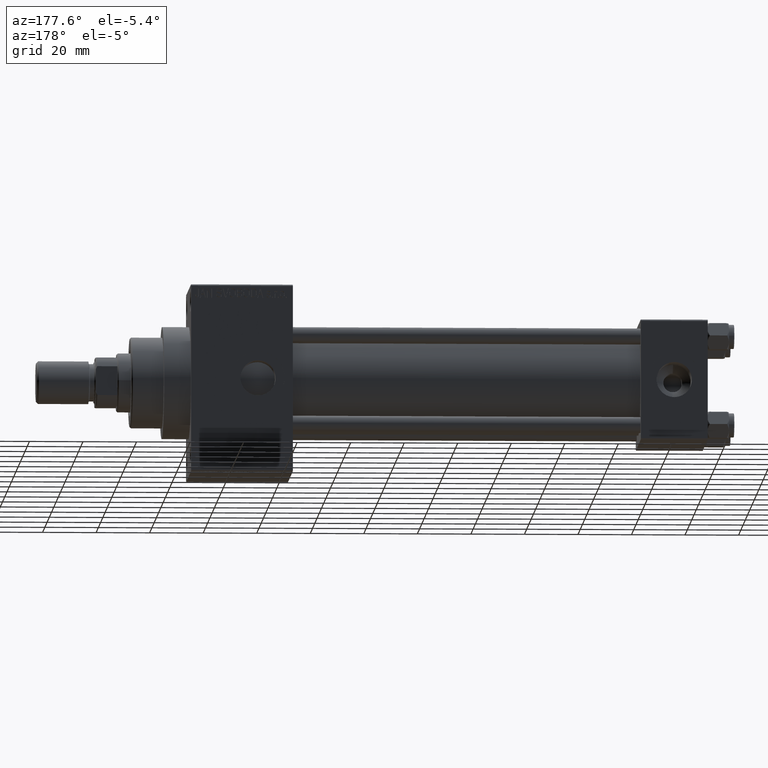
[diagram: clean part render]
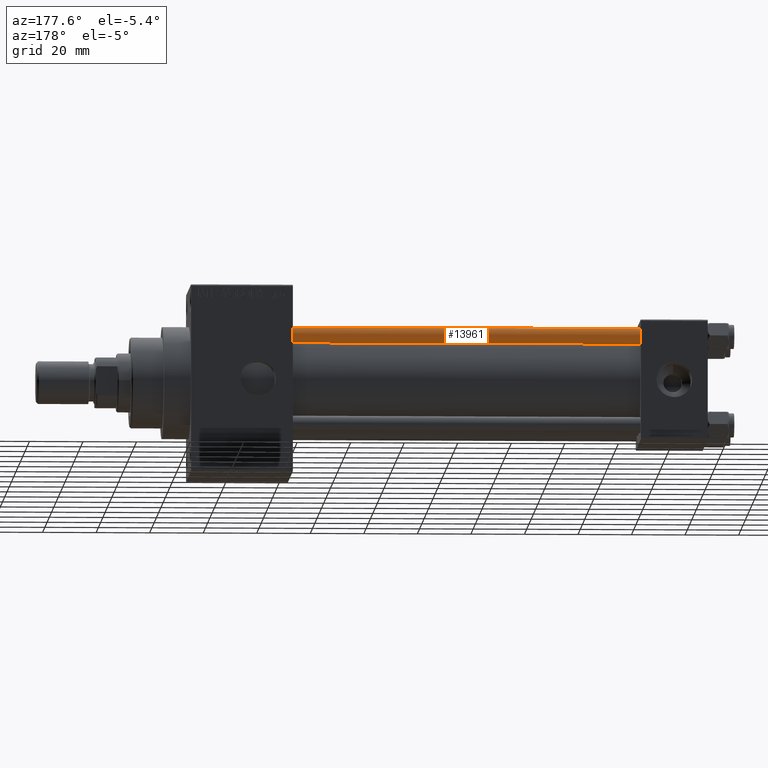
[diagram: same view with one face highlighted and labeled with its STEP entity id]
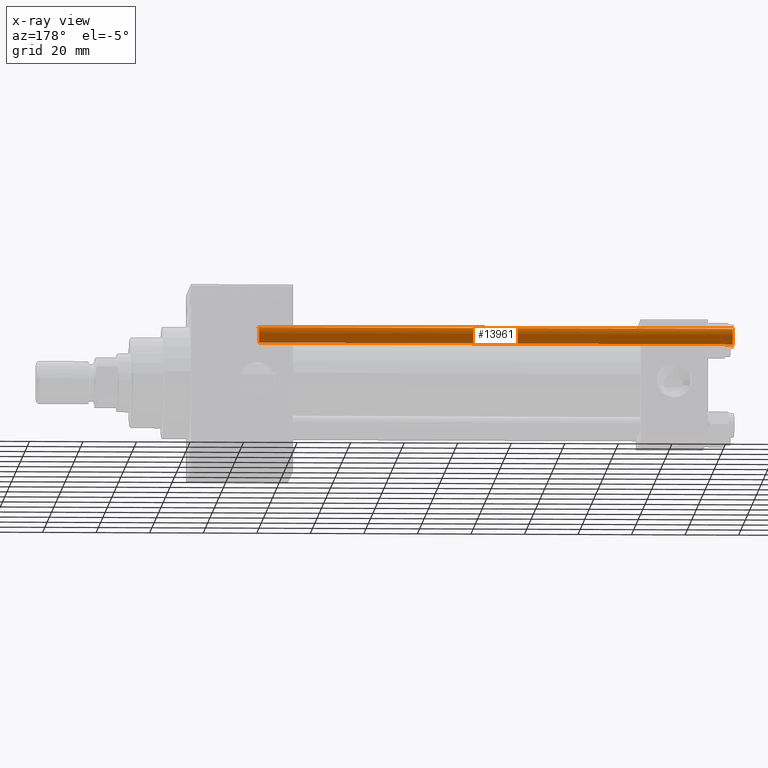
[diagram: x-ray of the same camera — body ghosted, the highlighted face saturated]
A machine part, auxiliary view. The second image highlights one B-rep face of the part: STEP entity #13961.
The next image is the same camera in x-ray: the body ghosted, the highlighted face saturated — about 0% of this face is hidden behind the body in this view.
In plain terms, the highlighted cylindrical surface (edge-blend (fillet) strip) has radius 3 mm, axis along (-1, -0, 0).
Its self-contained STEP definition (entity closure, byte-faithful):
#2330 = DIRECTION ( 'NONE',  ( -0.000000000000000000, -0.000000000000000000, -1.000000000000000000 ) ) ;
#4628 = AXIS2_PLACEMENT_3D ( 'NONE', #23373, #19768, #38042 ) ;
#6490 = CARTESIAN_POINT ( 'NONE',  ( 3.000000000000000444, 3.673940397442060361E-16, 178.0000000000000000 ) ) ;
#7698 = AXIS2_PLACEMENT_3D ( 'NONE', #35446, #39521, #35205 ) ;
#7712 = CIRCLE ( 'NONE', #4628, 3.000000000000000444 ) ;
#7930 = VERTEX_POINT ( 'NONE', #32428 ) ;
#8693 = VERTEX_POINT ( 'NONE', #42778 ) ;
#9873 = DIRECTION ( 'NONE',  ( -0.000000000000000000, -0.000000000000000000, -1.000000000000000000 ) ) ;
#12300 = ORIENTED_EDGE ( 'NONE', *, *, #23008, .T. ) ;
#13961 = ADVANCED_FACE ( 'NONE', ( #35085 ), #31253, .T. ) ;
#14246 = EDGE_CURVE ( 'NONE', #20430, #7930, #28490, .T. ) ;
#16632 = LINE ( 'NONE', #46883, #18976 ) ;
#17028 = DIRECTION ( 'NONE',  ( -1.000000000000000000, 0.000000000000000000, 0.000000000000000000 ) ) ;
#18976 = VECTOR ( 'NONE', #19787, 1000.000000000000000 ) ;
#19768 = DIRECTION ( 'NONE',  ( -0.000000000000000000, -0.000000000000000000, 1.000000000000000000 ) ) ;
#19787 = DIRECTION ( 'NONE',  ( -0.000000000000000000, -0.000000000000000000, -1.000000000000000000 ) ) ;
#20028 = AXIS2_PLACEMENT_3D ( 'NONE', #39411, #2330, #17028 ) ;
#20430 = VERTEX_POINT ( 'NONE', #42201 ) ;
#23008 = EDGE_CURVE ( 'NONE', #7930, #34010, #24828, .T. ) ;
#23108 = ORIENTED_EDGE ( 'NONE', *, *, #46378, .T. ) ;
#23373 = CARTESIAN_POINT ( 'NONE',  ( 0.000000000000000000, 0.000000000000000000, 0.5000000000000281997 ) ) ;
#24828 = LINE ( 'NONE', #6490, #33397 ) ;
#25799 = ORIENTED_EDGE ( 'NONE', *, *, #14246, .T. ) ;
#28490 = CIRCLE ( 'NONE', #7698, 3.000000000000000444 ) ;
#31253 = CYLINDRICAL_SURFACE ( 'NONE', #20028, 3.000000000000000444 ) ;
#31623 = EDGE_CURVE ( 'NONE', #20430, #8693, #16632, .T. ) ;
#32428 = CARTESIAN_POINT ( 'NONE',  ( 3.000000000000000444, 3.673940397442060361E-16, 177.5000000000000000 ) ) ;
#33397 = VECTOR ( 'NONE', #9873, 1000.000000000000000 ) ;
#34010 = VERTEX_POINT ( 'NONE', #37263 ) ;
#35085 = FACE_OUTER_BOUND ( 'NONE', #40509, .T. ) ;
#35205 = DIRECTION ( 'NONE',  ( 1.000000000000000000, 0.000000000000000000, 0.000000000000000000 ) ) ;
#35446 = CARTESIAN_POINT ( 'NONE',  ( 0.000000000000000000, 0.000000000000000000, 177.5000000000000000 ) ) ;
#37117 = ORIENTED_EDGE ( 'NONE', *, *, #31623, .F. ) ;
#37263 = CARTESIAN_POINT ( 'NONE',  ( 3.000000000000000444, 3.673940397442060361E-16, 0.5000000000000281997 ) ) ;
#38042 = DIRECTION ( 'NONE',  ( 1.000000000000000000, 0.000000000000000000, 0.000000000000000000 ) ) ;
#39411 = CARTESIAN_POINT ( 'NONE',  ( 0.000000000000000000, 0.000000000000000000, 178.0000000000000000 ) ) ;
#39521 = DIRECTION ( 'NONE',  ( 0.000000000000000000, 0.000000000000000000, -1.000000000000000000 ) ) ;
#40509 = EDGE_LOOP ( 'NONE', ( #25799, #12300, #23108, #37117 ) ) ;
#42201 = CARTESIAN_POINT ( 'NONE',  ( -3.000000000000000444, 0.000000000000000000, 177.5000000000000000 ) ) ;
#42778 = CARTESIAN_POINT ( 'NONE',  ( -3.000000000000000444, 0.000000000000000000, 0.5000000000000281997 ) ) ;
#46378 = EDGE_CURVE ( 'NONE', #34010, #8693, #7712, .T. ) ;
#46883 = CARTESIAN_POINT ( 'NONE',  ( -3.000000000000000444, 0.000000000000000000, 178.0000000000000000 ) ) ;